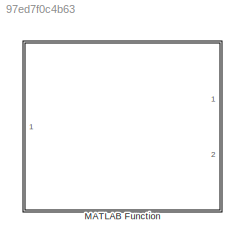
MODEL slx_97ed7f0c4b63
KIND library
CONFIG AbsTol = auto
CONFIG EnableMultiTasking = off
CONFIG FixedStep = auto
CONFIG MaxStep = auto
CONFIG MinStep = auto
CONFIG RelTol = 1e-3
CONFIG SampleTimeConstraint = Unconstrained
CONFIG Solver = VariableStepAuto
CONFIG SolverName = VariableStepAuto
CONFIG StartTime = 0.0
CONFIG StopTime = 10.0
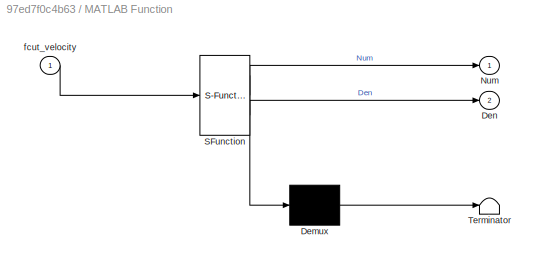
BLOCK [SubSystem] MATLAB Function
  ErrorFcn = Stateflow.Translate.translate
  PermitHierarchicalResolution = ExplicitOnly
  Ports = [1, 2]
  RequestExecContextInheritance = off
  SFBlockType = MATLAB Function
  TreatAsAtomicUnit = on
  Variant = off
BLOCK [Demux] MATLAB Function/ Demux 
  Outputs = 1
  Ports = [1, 1]
BLOCK [S-Function] MATLAB Function/ SFunction 
  EnableBusSupport = off
  FunctionName = sf_sfun
  PortCounts = [1 3]
  Ports = [1, 3]
  SFcnIsStateOwnerBlock = off
  SFunctionDeploymentMode = off
  Tag = Stateflow S-Function func_block_library_from_2017b 2
BLOCK [Terminator] MATLAB Function/ Terminator 
BLOCK [Outport] MATLAB Function/Den
  IconDisplay = Port number
  Port = 2
BLOCK [Outport] MATLAB Function/Num
  IconDisplay = Port number
BLOCK [Inport] MATLAB Function/fcut_velocity
  IconDisplay = Port number
CHART MATLAB Function states=1 transitions=1
  STATE_LABEL 'eML_blk_kernel()'
  STATE_LABEL 'SCRIPT:\nfunction [Num, Den] = velocity_filter_param(fcut_velocity)\nsample_time = 1/2000;\nlpf_damping = sqrt(2)/2; % Butterworth filter damping\nB1_lpf_velocity = -2*exp(-lpf_damping*fcut_velocity*sample_time)*cos(fcut_velocity*sample_time*sqrt(1-lpf_damping^2));\nB2_lpf_velocity = exp(-2*lpf_damping*fcut_velocity*sample_time);\nA_lpf_velocity = 1 + B1_lpf_velocity + B2_lpf_velocity;\n\nNum = [ A_lpf_ve...<+61ch>'
